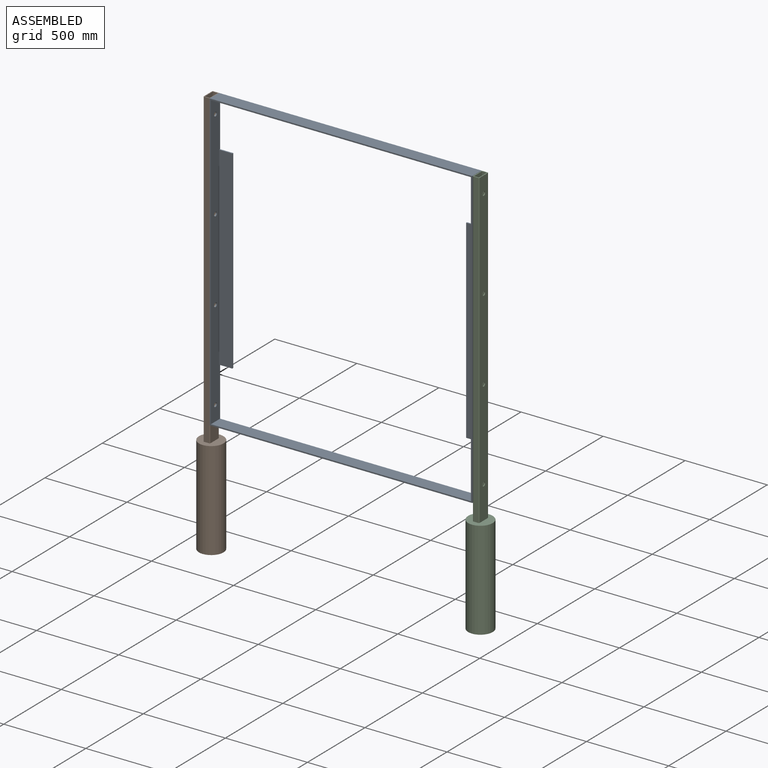
[diagram: assembled view]
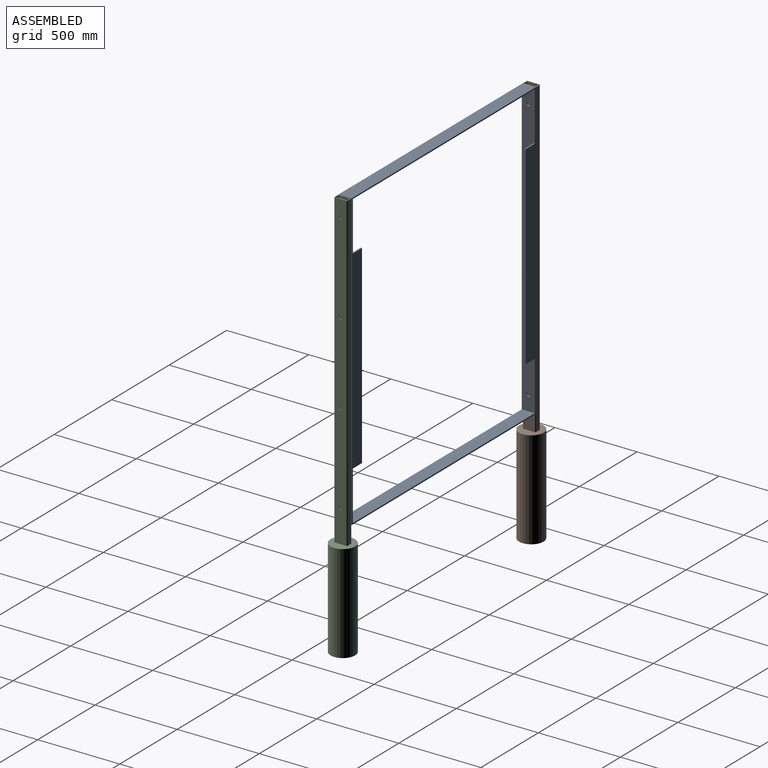
[diagram: assembled view, second angle]
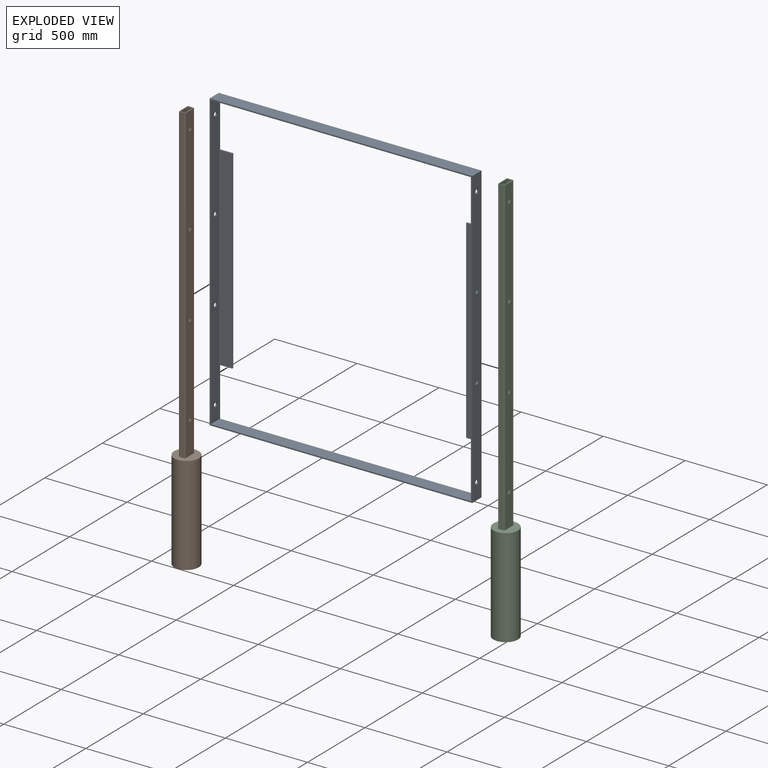
[diagram: exploded view]
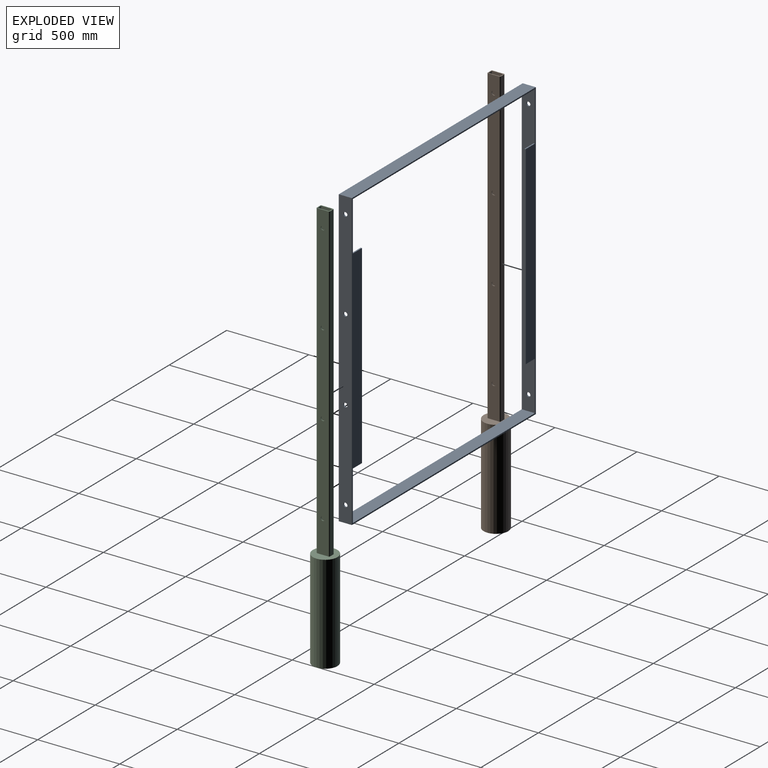
[diagram: exploded view, second angle]
ASSEMBLY  parts=3 mates=2
PART A: 26 faces, bbox 1600x80x1800 mm
  f0: plane 1784x80mm, normal (1,0,0), area 131284.5mm2, adj f1,f7,f8,f9,f10,f12,f13,f22
  f1: plane 1584x80mm, normal (0,0,-1), area 126720mm2, adj f0,f2,f8,f9
  f2: plane 1784x80mm, normal (-1,0,0), area 131284.5mm2, adj f1,f7,f8,f9,f14,f16,f17,f18
  f3: plane 1800x80mm, normal (-1,0,0), area 142036.5mm2, adj f4,f6,f8,f9,f22,f23,f24,f25
  f4: plane 1600x80mm, normal (0,0,-1), area 128000mm2, adj f3,f5,f8,f9
  f5: plane 1800x80mm, normal (1,0,0), area 142036.5mm2, adj f4,f6,f8,f9,f18,f19,f20,f21
  f6: plane 1600x80mm, normal (0,0,1), area 128000mm2, adj f3,f5,f8,f9
  f7: plane 1584x80mm, normal (0,0,1), area 126720mm2, adj f0,f2,f8,f9
  f8: plane 1800x1600mm, normal (0,-1,0), area 54144mm2, adj f0,f1,f2,f3,f4,f5,f6,f7
  f9: plane 1800x1600mm, normal (0,1,0), area 243584mm2, adj f0,f1,f2,f3,f4,f5,f6,f7
  f10: plane 80x8mm, normal (0,0,-1), area 640mm2, adj f0,f9,f11,f13
  f11: plane 1184x8mm, normal (1,0,0), area 9472mm2, adj f9,f10,f12,f13
  f12: plane 80x8mm, normal (0,0,1), area 640mm2, adj f0,f9,f11,f13
  f13: plane 1184x80mm, normal (0,-1,0), area 94720mm2, adj f0,f10,f11,f12
  f14: plane 80x8mm, normal (0,0,1), area 640mm2, adj f2,f9,f15,f17
  f15: plane 1184x8mm, normal (-1,0,0), area 9472mm2, adj f9,f14,f16,f17
  f16: plane 80x8mm, normal (0,0,-1), area 640mm2, adj f2,f9,f15,f17
  f17: plane 1184x80mm, normal (0,-1,0), area 94720mm2, adj f2,f14,f15,f16
  f18: cylinder r=12.5mm len=25mm, axis (1,0,0), area 628.3mm2, adj f2,f5
  f19: cylinder r=12.5mm len=25mm, axis (1,0,0), area 628.3mm2, adj f2,f5
  f20: cylinder r=12.5mm len=25mm, axis (1,0,0), area 628.3mm2, adj f2,f5
  f21: cylinder r=12.5mm len=25mm, axis (1,0,0), area 628.3mm2, adj f2,f5
  f22: cylinder r=12.5mm len=25mm, axis (1,0,0), area 628.3mm2, adj f0,f3
  f23: cylinder r=12.5mm len=25mm, axis (1,0,0), area 628.3mm2, adj f0,f3
  f24: cylinder r=12.5mm len=25mm, axis (1,0,0), area 628.3mm2, adj f0,f3
  f25: cylinder r=12.5mm len=25mm, axis (1,0,0), area 628.3mm2, adj f0,f3
PART B: 25 faces, bbox 150x150x2500 mm
  f0: plane 1900x70mm, normal (-1,0,0), area 131036.5mm2, adj f1,f11,f12,f15,f21,f22,f23,f24
  f1: cylinder r=5mm len=1900mm, axis (0,0,-1), area 14922.6mm2, adj f0,f2,f12,f15
  f2: plane 1900x30mm, normal (0,-1,0), area 57000mm2, adj f1,f3,f12,f15
  f3: cylinder r=5mm len=1900mm, axis (0,0,-1), area 14922.6mm2, adj f2,f4,f12,f15
  f4: plane 1900x70mm, normal (1,0,0), area 131036.5mm2, adj f3,f5,f12,f15,f17,f18,f19,f20
  f5: cylinder r=5mm len=1900mm, axis (0,0,-1), area 14922.6mm2, adj f4,f6,f12,f15
  f6: plane 1900x30mm, normal (0,1,0), area 57000mm2, adj f5,f11,f12,f15
  f7: plane 1900x30mm, normal (0,1,0), area 57000mm2, adj f8,f10,f12,f16
  f8: plane 1900x70mm, normal (1,0,0), area 131036.5mm2, adj f7,f9,f12,f16,f21,f22,f23,f24
  f9: plane 1900x30mm, normal (0,-1,0), area 57000mm2, adj f8,f10,f12,f16
  f10: plane 1900x70mm, normal (-1,0,0), area 131036.5mm2, adj f7,f9,f12,f16,f17,f18,f19,f20
  f11: cylinder r=5mm len=1900mm, axis (0,0,-1), area 14922.6mm2, adj f0,f6,f12,f15
  f12: plane 80x40mm, normal (0,0,1), area 1078.5mm2, adj f0,f1,f2,f3,f4,f5,f6,f7
  f13: plane 150x150mm, normal (0,0,-1), area 17671.5mm2, adj f14
  f14: cylinder r=75mm len=600mm, axis (0,0,1), area 282743.3mm2, adj f13,f15
  f15: plane 150x150mm, normal (0,0,1), area 14492.9mm2, adj f0,f1,f2,f3,f4,f5,f6,f11
  f16: plane 70x30mm, normal (0,0,1), area 2100mm2, adj f7,f8,f9,f10
  f17: cylinder r=12.5mm len=25mm, axis (1,0,0), area 392.7mm2, adj f4,f10
  f18: cylinder r=12.5mm len=25mm, axis (1,0,0), area 392.7mm2, adj f4,f10
  f19: cylinder r=12.5mm len=25mm, axis (1,0,0), area 392.7mm2, adj f4,f10
  f20: cylinder r=12.5mm len=25mm, axis (1,0,0), area 392.7mm2, adj f4,f10
  f21: cylinder r=12.5mm len=25mm, axis (1,0,0), area 392.7mm2, adj f0,f8
  f22: cylinder r=12.5mm len=25mm, axis (1,0,0), area 392.7mm2, adj f0,f8
  f23: cylinder r=12.5mm len=25mm, axis (1,0,0), area 392.7mm2, adj f0,f8
  f24: cylinder r=12.5mm len=25mm, axis (1,0,0), area 392.7mm2, adj f0,f8
PART C: same geometry as B
PLACE A rot(axis=(1,0,0),0deg) t=(-1264.61,-251,859.8)mm
PLACE B t=(-1302.61,-331,759.8)mm fixed
PLACE C t=(337.39,-331,759.8)mm
MATE parallel B.f2 <-> A.f8  axis (0,-1,0) through (-1282.61,-331,1709.8)mm
MATE revolute B.f20 <-> A.f21  axis (1,0,0) through (-1262.61,-291,2559.8)mm
